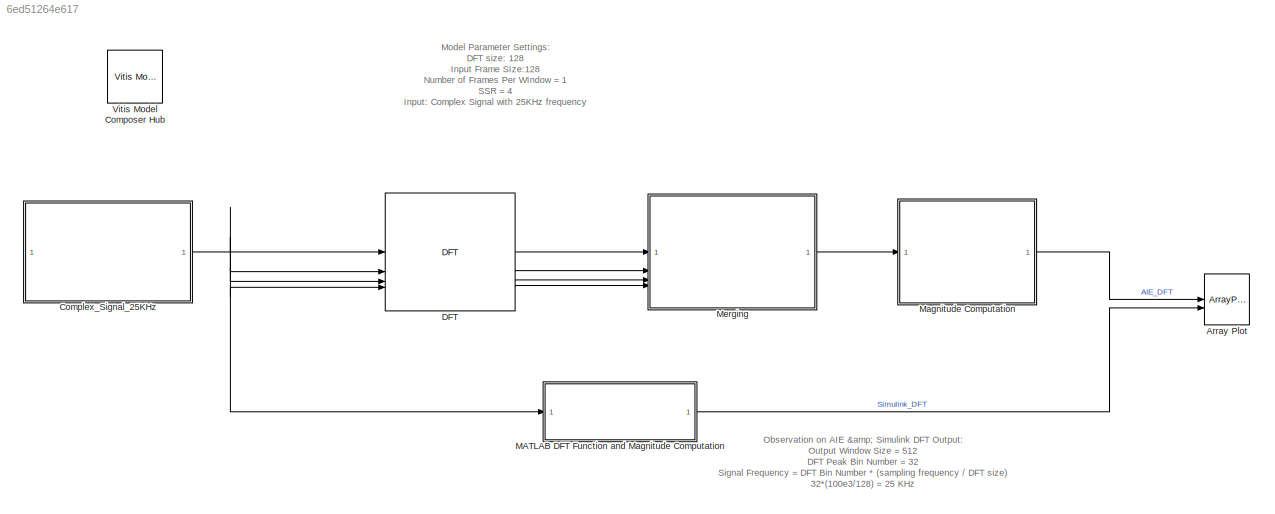
MODEL slx_6ed51264e617
KIND model
CONFIG AbsTol = auto
CONFIG EnableMultiTasking = off
CONFIG FixedStep = auto
CONFIG MaxStep = auto
CONFIG MinStep = auto
CONFIG RelTol = 1e-3
CONFIG SampleTimeConstraint = Unconstrained
CONFIG SolverName = VariableStepAuto
CONFIG StartTime = 0.0
CONFIG StopTime = 0.5
BLOCK [ArrayPlot] Array Plot
  GraphicalSettings = {"Style":{"BackgroundColor":[0.12941176470588237,0.12941176470588237,0.12941176470588237],"AxesColor":[0.070588235294117646,0.070588235294117646,0.070588235294117646],"LabelsColor":[0.85098039215686272,0.85098039215686272,0.85098039215686272],"PreserveColors":false,"Visible":[true,true],"LineStyle":["-","-"],"LineColor":[[1,0.90980392156862744,0.39215686274509803],[0.14901960784313725,0.5490196078...<+635ch>
  NumInputPorts = 2
  ScopeFrameLocation = window
  ShowLegend = on
  Visible = on
  WasSavedAsWebScope = on
  WindowPosition = [1.000000,1.000000,1280.000000,744.000000,]
  YLimits = [-160 1440]
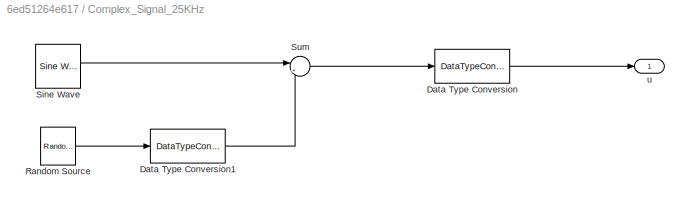
BLOCK [SubSystem] Complex_Signal_25KHz
BLOCK [DataTypeConversion] Complex_Signal_25KHz/Data Type Conversion
  OutDataTypeStr = int16
  RndMeth = Floor
  SaturateOnIntegerOverflow = off
BLOCK [DataTypeConversion] Complex_Signal_25KHz/Data Type Conversion1
  OutDataTypeStr = fixdt(1,16,10)
  RndMeth = Floor
  SaturateOnIntegerOverflow = off
BLOCK [Reference] Complex_Signal_25KHz/Random Source  REF=dspobslib/Random
Source
  SourceBlock = dspobslib/Random\nSource
  SourceType = Random Source Obsolete
  UserDataPersistent = on
BLOCK [Reference] Complex_Signal_25KHz/Sine Wave  REF=dspsrcs4/Sine Wave
  SourceBlock = dspsrcs4/Sine Wave
  SourceType = Sine Wave
BLOCK [Sum] Complex_Signal_25KHz/Sum
  Inputs = |++
BLOCK [Outport] Complex_Signal_25KHz/u
BLOCK [Reference] DFT  REF=aieDSP/DFT
  SourceBlock = aieDSP/DFT
  SourceType = DFT
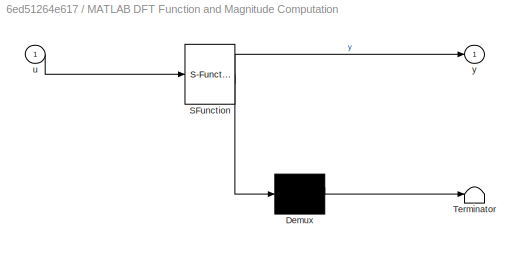
BLOCK [SubSystem] MATLAB DFT Function and Magnitude Computation
  ErrorFcn = Stateflow.Translate.translate
  PermitHierarchicalResolution = ExplicitOnly
  SFBlockType = MATLAB Function
  TreatAsAtomicUnit = on
BLOCK [Demux] MATLAB DFT Function and Magnitude Computation/ Demux 
  Outputs = 1
BLOCK [S-Function] MATLAB DFT Function and Magnitude Computation/ SFunction 
  EnableBusSupport = off
  FunctionName = sf_sfun
  PortCounts = [1 2]
  SFcnIsStateOwnerBlock = off
  SFunctionDeploymentMode = off
  Tag = Stateflow S-Function 2
BLOCK [Terminator] MATLAB DFT Function and Magnitude Computation/ Terminator 
BLOCK [Inport] MATLAB DFT Function and Magnitude Computation/u
BLOCK [Outport] MATLAB DFT Function and Magnitude Computation/y
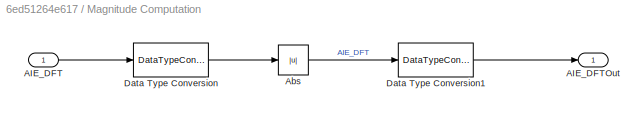
BLOCK [SubSystem] Magnitude Computation
BLOCK [Inport] Magnitude Computation/AIE_DFT
BLOCK [Outport] Magnitude Computation/AIE_DFTOut
BLOCK [Abs] Magnitude Computation/Abs
  SaturateOnIntegerOverflow = off
BLOCK [DataTypeConversion] Magnitude Computation/Data Type Conversion
  OutDataTypeStr = single
  RndMeth = Floor
  SaturateOnIntegerOverflow = off
BLOCK [DataTypeConversion] Magnitude Computation/Data Type Conversion1
  OutDataTypeStr = int16
  RndMeth = Floor
  SaturateOnIntegerOverflow = off
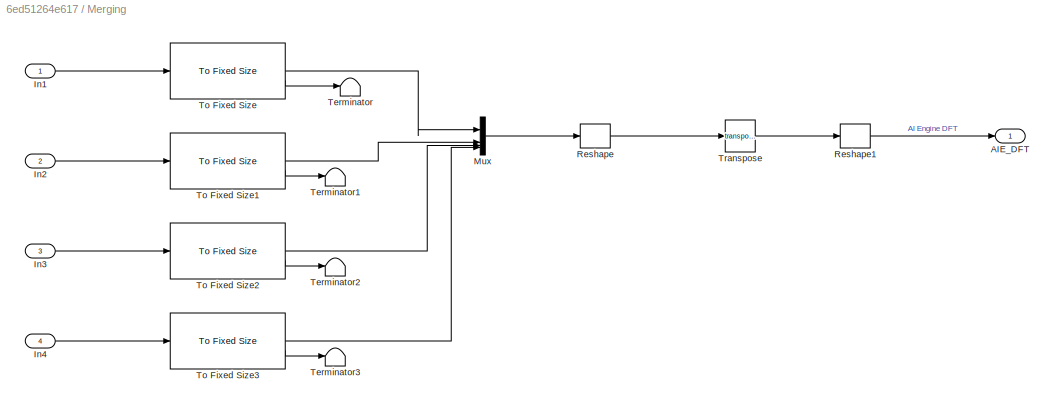
BLOCK [SubSystem] Merging
BLOCK [Outport] Merging/AIE_DFT
BLOCK [Inport] Merging/In1
BLOCK [Inport] Merging/In2
  Port = 2
BLOCK [Inport] Merging/In3
  Port = 3
BLOCK [Inport] Merging/In4
  Port = 4
BLOCK [Mux] Merging/Mux
  DisplayOption = bar
BLOCK [Reshape] Merging/Reshape
  OutputDimensionality = Customize
  OutputDimensions = [32, 4]
BLOCK [Reshape] Merging/Reshape1
  OutputDimensions = [1, 10]
BLOCK [Terminator] Merging/Terminator
BLOCK [Terminator] Merging/Terminator1
BLOCK [Terminator] Merging/Terminator2
BLOCK [Terminator] Merging/Terminator3
BLOCK [Reference] Merging/To Fixed Size  REF=aieUtilities/To Fixed Size
  SourceBlock = aieUtilities/To Fixed Size
  SourceType = To Fixed Size
BLOCK [Reference] Merging/To Fixed Size1  REF=aieUtilities/To Fixed Size
  SourceBlock = aieUtilities/To Fixed Size
  SourceType = To Fixed Size
BLOCK [Reference] Merging/To Fixed Size2  REF=aieUtilities/To Fixed Size
  SourceBlock = aieUtilities/To Fixed Size
  SourceType = To Fixed Size
BLOCK [Reference] Merging/To Fixed Size3  REF=aieUtilities/To Fixed Size
  SourceBlock = aieUtilities/To Fixed Size
  SourceType = To Fixed Size
BLOCK [Math] Merging/Transpose
  Operator = transpose
BLOCK [Reference] Vitis Model Composer Hub  REF=vmcUtilities/Vitis Model Composer Hub
  SourceBlock = vmcUtilities/Vitis Model Composer Hub
  SourceType = VMC Hub
  Tag = genX
  UserDataPersistent = on
ANNOTATION (root): Model Parameter Settings: DFT size: 128 Input Frame SIze:128 Number of Frames Per WIndow = 1 SSR = 4 Input: Complex Signal with 25KHz frequency Input sampling rate: 100KHz
ANNOTATION (root): Observation on AIE & Simulink DFT Output: Output Window Size = 512 DFT Peak Bin Number = 32 Signal Frequency = DFT Bin Number * (sampling frequency / DFT size) 32*(100e3/128) = 25 KHz
LINE Complex_Signal_25KHz/Data Type Conversion1:1 -> Complex_Signal_25KHz/Sum:2
LINE Complex_Signal_25KHz/Data Type Conversion:1 -> Complex_Signal_25KHz/u:1
LINE Complex_Signal_25KHz/Random Source:1 -> Complex_Signal_25KHz/Data Type Conversion1:1
LINE Complex_Signal_25KHz/Sine Wave:1 -> Complex_Signal_25KHz/Sum:1
LINE Complex_Signal_25KHz/Sum:1 -> Complex_Signal_25KHz/Data Type Conversion:1
NET Complex_Signal_25KHz:1 -> DFT:1, DFT:2, DFT:3, DFT:4, MATLAB DFT Function and Magnitude Computation:1
LINE DFT:1 -> Merging:1
LINE DFT:2 -> Merging:2
LINE DFT:3 -> Merging:3
LINE DFT:4 -> Merging:4
LINE MATLAB DFT Function and Magnitude Computation:1 -> Array Plot:2
LINE Magnitude Computation/AIE_DFT:1 -> Magnitude Computation/Data Type Conversion:1
LINE Magnitude Computation/Abs:1 -> Magnitude Computation/Data Type Conversion1:1
LINE Magnitude Computation/Data Type Conversion1:1 -> Magnitude Computation/AIE_DFTOut:1
LINE Magnitude Computation/Data Type Conversion:1 -> Magnitude Computation/Abs:1
LINE Magnitude Computation:1 -> Array Plot:1
LINE Merging/In1:1 -> Merging/To Fixed Size:1
LINE Merging/In2:1 -> Merging/To Fixed Size1:1
LINE Merging/In3:1 -> Merging/To Fixed Size2:1
LINE Merging/In4:1 -> Merging/To Fixed Size3:1
LINE Merging/Mux:1 -> Merging/Reshape:1
LINE Merging/Reshape1:1 -> Merging/AIE_DFT:1
LINE Merging/Reshape:1 -> Merging/Transpose:1
LINE Merging/To Fixed Size1:1 -> Merging/Mux:2
LINE Merging/To Fixed Size1:2 -> Merging/Terminator1:1
LINE Merging/To Fixed Size2:1 -> Merging/Mux:3
LINE Merging/To Fixed Size2:2 -> Merging/Terminator2:1
LINE Merging/To Fixed Size3:1 -> Merging/Mux:4
LINE Merging/To Fixed Size3:2 -> Merging/Terminator3:1
LINE Merging/To Fixed Size:1 -> Merging/Mux:1
LINE Merging/To Fixed Size:2 -> Merging/Terminator:1
LINE Merging/Transpose:1 -> Merging/Reshape1:1
LINE Merging:1 -> Magnitude Computation:1
note: NET lines group one-source signal fan-out (src -> all destinations, sorted); 1:1 wires keep LINE
CHART MATLAB DFT Function and Magnitude Computation states=1 transitions=1
  STATE_LABEL 'eML_blk_kernel()'
  STATE_LABEL 'SCRIPT:\n\nfunction y = fcn(u)\n\nDFT_Size = 128; % DFT Size\nFramesPerWindow = 1; %No.of Frames Per Window\nu = single(u);\n\nX = single(complex(zeros(DFT_Size,FramesPerWindow)));\n\nfor m = 1:1:FramesPerWindow\nfor k = 0:DFT_Size-1\n    for n = 0:DFT_Size-1\n        X(k+1,m) = X(k+1,m) + u(n+1)*exp(-1i*2*pi*n*k/DFT_Size);\n    end\nend\nend\n\ny = int16(abs(reshape(X,DFT_Size*FramesPerWindow,1)));'
CHART  states=0 transitions=0
